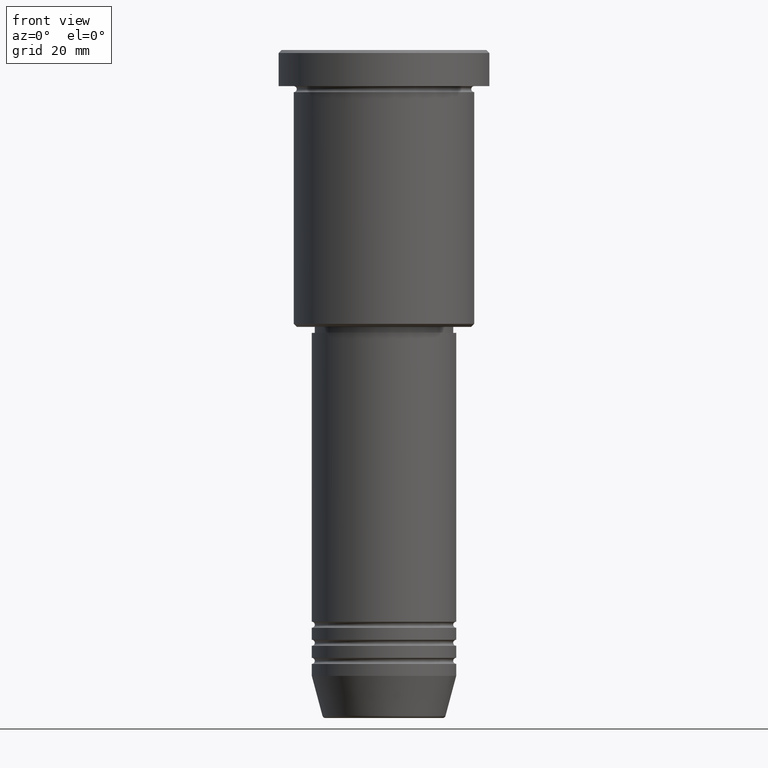
[diagram: clean part render]
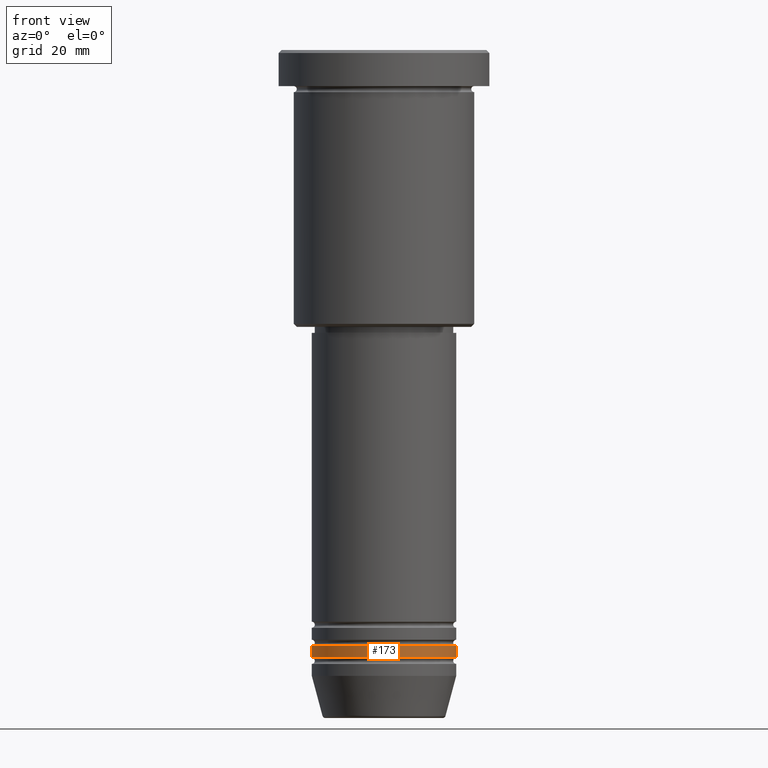
[diagram: same view with one face highlighted and labeled with its STEP entity id]
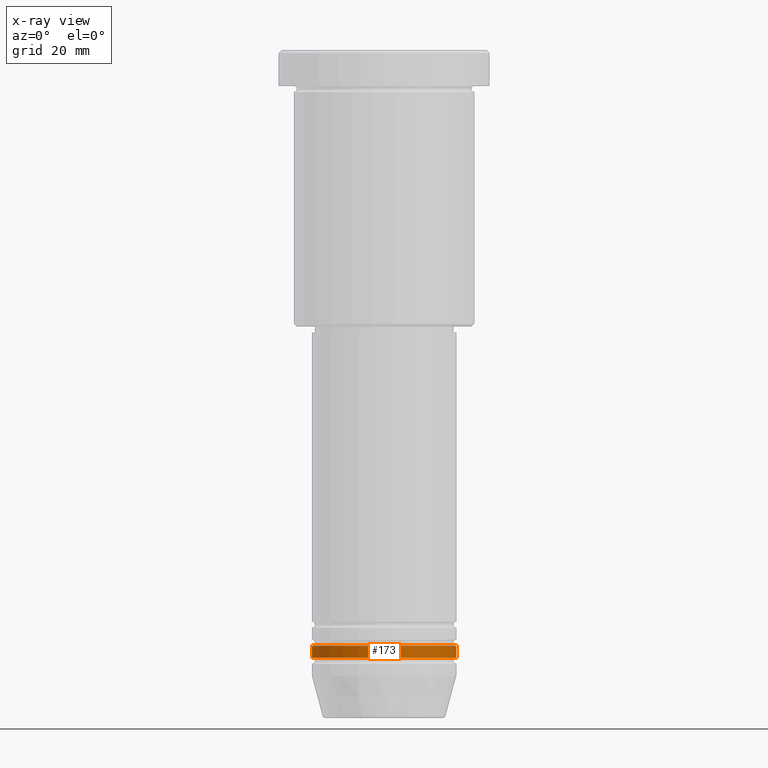
[diagram: x-ray of the same camera — body ghosted, the highlighted face saturated]
A machine part, front view. The second image highlights one B-rep face of the part: STEP entity #173.
The next image is the same camera in x-ray: the body ghosted, the highlighted face saturated — about 0% of this face is hidden behind the body in this view.
In plain terms, the highlighted cylindrical surface (partial cylindrical patch) has radius 12 mm, axis along (-0, -0, 1).
Its self-contained STEP definition (entity closure, byte-faithful):
#5 = DIRECTION ( 'NONE',  ( 1.000000000000000000, 0.000000000000000000, 0.000000000000000000 ) ) ;
#20 = ORIENTED_EDGE ( 'NONE', *, *, #134, .F. ) ;
#28 = DIRECTION ( 'NONE',  ( -0.000000000000000000, -0.000000000000000000, 1.000000000000000000 ) ) ;
#59 = FACE_OUTER_BOUND ( 'NONE', #731, .T. ) ;
#95 = CARTESIAN_POINT ( 'NONE',  ( -12.00000000000000000, 1.469576158976823947E-15, -98.99999999999998579 ) ) ;
#122 = AXIS2_PLACEMENT_3D ( 'NONE', #244, #472, #1048 ) ;
#134 = EDGE_CURVE ( 'NONE', #1029, #203, #744, .T. ) ;
#136 = CARTESIAN_POINT ( 'NONE',  ( -12.00000000000000000, 1.469576158976823947E-15, 0.000000000000000000 ) ) ;
#142 = ORIENTED_EDGE ( 'NONE', *, *, #1057, .T. ) ;
#155 = LINE ( 'NONE', #136, #202 ) ;
#160 = AXIS2_PLACEMENT_3D ( 'NONE', #235, #1062, #784 ) ;
#173 = ADVANCED_FACE ( 'NONE', ( #59 ), #408, .T. ) ;
#177 = DIRECTION ( 'NONE',  ( -0.000000000000000000, -0.000000000000000000, 1.000000000000000000 ) ) ;
#202 = VECTOR ( 'NONE', #243, 1000.000000000000000 ) ;
#203 = VERTEX_POINT ( 'NONE', #249 ) ;
#235 = CARTESIAN_POINT ( 'NONE',  ( 0.000000000000000000, 0.000000000000000000, 0.000000000000000000 ) ) ;
#243 = DIRECTION ( 'NONE',  ( -0.000000000000000000, -0.000000000000000000, 1.000000000000000000 ) ) ;
#244 = CARTESIAN_POINT ( 'NONE',  ( 0.000000000000000000, 0.000000000000000000, -98.99999999999998579 ) ) ;
#249 = CARTESIAN_POINT ( 'NONE',  ( 12.00000000000000000, 0.000000000000000000, -98.99999999999998579 ) ) ;
#324 = CIRCLE ( 'NONE', #949, 12.00000000000000000 ) ;
#343 = CARTESIAN_POINT ( 'NONE',  ( 12.00000000000000000, 0.000000000000000000, -100.9999999999999716 ) ) ;
#367 = ORIENTED_EDGE ( 'NONE', *, *, #953, .T. ) ;
#376 = ORIENTED_EDGE ( 'NONE', *, *, #494, .F. ) ;
#408 = CYLINDRICAL_SURFACE ( 'NONE', #160, 12.00000000000000000 ) ;
#457 = CARTESIAN_POINT ( 'NONE',  ( 12.00000000000000000, 0.000000000000000000, 0.000000000000000000 ) ) ;
#472 = DIRECTION ( 'NONE',  ( -0.000000000000000000, -0.000000000000000000, 1.000000000000000000 ) ) ;
#494 = EDGE_CURVE ( 'NONE', #509, #1029, #155, .T. ) ;
#509 = VERTEX_POINT ( 'NONE', #973 ) ;
#609 = VECTOR ( 'NONE', #177, 1000.000000000000000 ) ;
#622 = VERTEX_POINT ( 'NONE', #343 ) ;
#637 = CARTESIAN_POINT ( 'NONE',  ( 0.000000000000000000, 0.000000000000000000, -100.9999999999999716 ) ) ;
#731 = EDGE_LOOP ( 'NONE', ( #376, #367, #142, #20 ) ) ;
#744 = CIRCLE ( 'NONE', #122, 12.00000000000000000 ) ;
#784 = DIRECTION ( 'NONE',  ( 1.000000000000000000, 0.000000000000000000, 0.000000000000000000 ) ) ;
#949 = AXIS2_PLACEMENT_3D ( 'NONE', #637, #28, #5 ) ;
#953 = EDGE_CURVE ( 'NONE', #509, #622, #324, .T. ) ;
#973 = CARTESIAN_POINT ( 'NONE',  ( -12.00000000000000000, 1.469576158976823947E-15, -100.9999999999999716 ) ) ;
#1029 = VERTEX_POINT ( 'NONE', #95 ) ;
#1048 = DIRECTION ( 'NONE',  ( 1.000000000000000000, 0.000000000000000000, 0.000000000000000000 ) ) ;
#1057 = EDGE_CURVE ( 'NONE', #622, #203, #1107, .T. ) ;
#1062 = DIRECTION ( 'NONE',  ( -0.000000000000000000, -0.000000000000000000, 1.000000000000000000 ) ) ;
#1107 = LINE ( 'NONE', #457, #609 ) ;